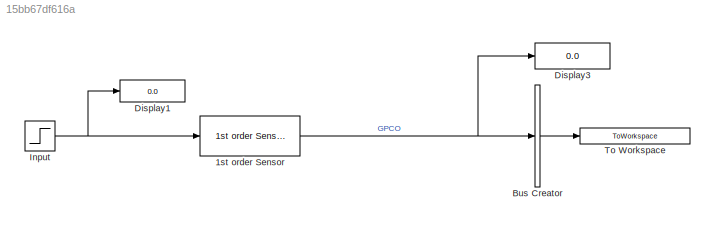
MODEL slx_15bb67df616a
KIND model
CONFIG AbsTol = auto
CONFIG EnableMultiTasking = on
CONFIG FixedStep = auto
CONFIG MaxStep = auto
CONFIG MinStep = auto
CONFIG RelTol = 1e-3
CONFIG SampleTimeConstraint = Unconstrained
CONFIG Solver = ode4
CONFIG SolverName = ode4
CONFIG StartTime = 0.0
CONFIG StopTime = 10
BLOCK [Reference] 1st order  Sensor  REF=Lib_Cntrl_FirstOrderSensor_TMATS/1st order  Sensor
  Ports = [1, 1]
  SourceBlock = Lib_Cntrl_FirstOrderSensor_TMATS/1st order  Sensor
  SourceType = T-MATS: 1st order sensor Library Block
BLOCK [BusCreator] Bus Creator
  DisplayOption = bar
  InheritFromInputs = on
  Inputs = 1
  Ports = [1, 1]
BLOCK [Display] Display1
  Decimation = 1
  Ports = [1]
BLOCK [Display] Display3
  Decimation = 1
  Format = long
  Ports = [1]
BLOCK [Step] Input
  After = MWS.Sensor_FO.Inp
  Before = MWS.Sensor_FO.Step_IV
  SampleTime = 0
  Time = MWS.Sensor_FO.Step_Time
BLOCK [ToWorkspace] To Workspace
  MaxDataPoints = inf
  Ports = [1]
  SampleTime = -1
  VariableName = TB_Output
NET 1st order  Sensor:1 -> Bus Creator:1, Display3:1
LINE Bus Creator:1 -> To Workspace:1
NET Input:1 -> 1st order  Sensor:1, Display1:1
note: NET lines group one-source signal fan-out (src -> all destinations, sorted); 1:1 wires keep LINE
